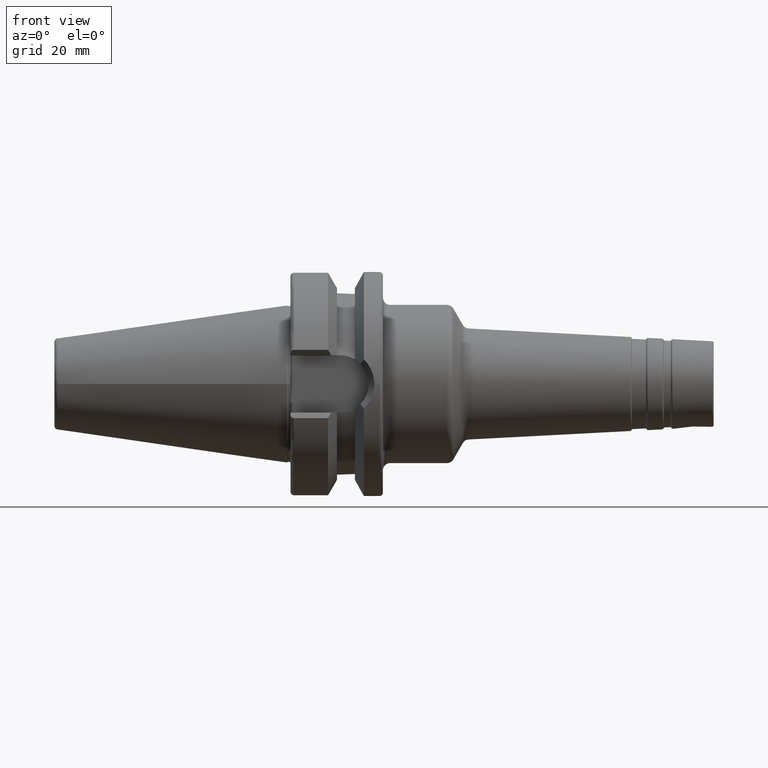
[diagram: clean part render]
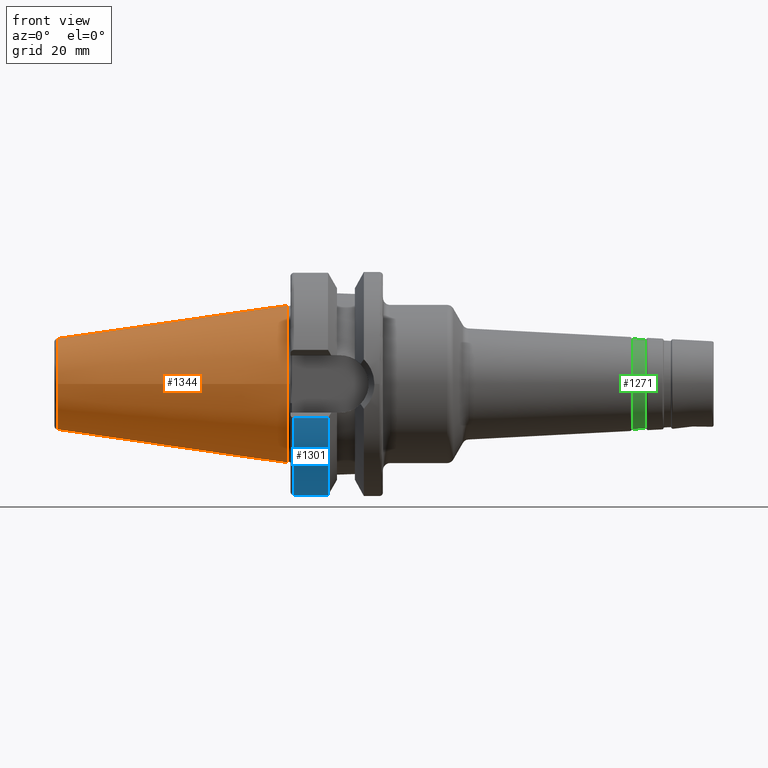
[diagram: same view with three faces highlighted in distinct colors, each labeled with its STEP entity id]
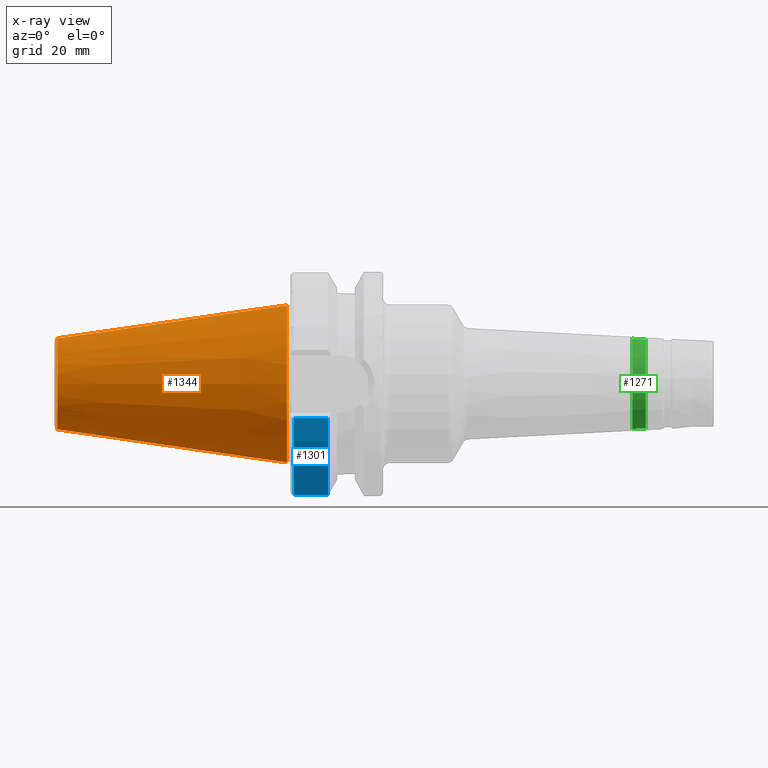
[diagram: x-ray of the same camera — body ghosted, the three highlighted faces saturated]
A machine part, front view with three faces highlighted in distinct colors.
The next image is the same camera in x-ray (body ghosted, the three faces saturated) — at least one of them is partly hidden behind the body in this view.
Their STEP definitions:

[orange] entity #1344 — the highlighted conical surface has half-angle 8.297 deg.
#165=LINE('',#2617,#236);
#236=VECTOR('',#1955,17.5186442890469);
#259=CONICAL_SURFACE('',#1538,17.5186442890469,0.144812498238939);
#340=FACE_OUTER_BOUND('',#429,.T.);
#429=EDGE_LOOP('',(#1226,#1227,#1228,#1229,#1230));
#520=CIRCLE('',#1535,12.8122885780937);
#521=CIRCLE('',#1536,12.8122885780937);
#523=CIRCLE('',#1539,22.225);
#644=VERTEX_POINT('',#2609);
#645=VERTEX_POINT('',#2610);
#646=VERTEX_POINT('',#2615);
#838=EDGE_CURVE('',#644,#645,#520,.T.);
#839=EDGE_CURVE('',#645,#644,#521,.T.);
#841=EDGE_CURVE('',#646,#646,#523,.T.);
#842=EDGE_CURVE('',#646,#644,#165,.T.);
#1226=ORIENTED_EDGE('',*,*,#841,.F.);
#1227=ORIENTED_EDGE('',*,*,#842,.T.);
#1228=ORIENTED_EDGE('',*,*,#838,.T.);
#1229=ORIENTED_EDGE('',*,*,#839,.T.);
#1230=ORIENTED_EDGE('',*,*,#842,.F.);
#1344=ADVANCED_FACE('',(#340),#259,.T.);
#1535=AXIS2_PLACEMENT_3D('',#2611,#1945,#1946);
#1536=AXIS2_PLACEMENT_3D('',#2612,#1947,#1948);
#1538=AXIS2_PLACEMENT_3D('',#2614,#1951,#1952);
#1539=AXIS2_PLACEMENT_3D('',#2616,#1953,#1954);
#1945=DIRECTION('center_axis',(1.,0.,0.));
#1946=DIRECTION('ref_axis',(0.,0.,-1.));
#1947=DIRECTION('center_axis',(1.,0.,0.));
#1948=DIRECTION('ref_axis',(0.,0.,-1.));
#1951=DIRECTION('center_axis',(1.,0.,0.));
#1952=DIRECTION('ref_axis',(0.,1.,0.));
#1953=DIRECTION('center_axis',(1.,0.,0.));
#1954=DIRECTION('ref_axis',(0.,0.,-1.));
#1955=DIRECTION('',(-0.989532981063281,0.144306893071729,1.76724974695192E-17));
#2609=CARTESIAN_POINT('',(-64.5443068930717,-12.8122885780937,-1.56905281969147E-15));
#2610=CARTESIAN_POINT('',(-64.5443068930717,-1.56905281969147E-15,12.8122885780937));
#2611=CARTESIAN_POINT('Origin',(-64.5443068930717,0.,0.));
#2612=CARTESIAN_POINT('Origin',(-64.5443068930717,0.,0.));
#2614=CARTESIAN_POINT('Origin',(-32.2721534465359,0.,0.));
#2615=CARTESIAN_POINT('',(4.44089209850063E-15,-22.225,-2.72177751110499E-15));
#2616=CARTESIAN_POINT('Origin',(0.,0.,0.));
#2617=CARTESIAN_POINT('',(-32.2721534465359,-17.5186442890469,-2.14541516539823E-15));

[blue] entity #1301 — the highlighted cylindrical surface (partial cylindrical patch) has radius 31.5 mm, axis along (1, 0, 0).
#56=CYLINDRICAL_SURFACE('',#1458,31.5);
#114=LINE('',#2255,#185);
#117=LINE('',#2267,#188);
#185=VECTOR('',#1740,10.);
#188=VECTOR('',#1747,10.);
#297=FACE_OUTER_BOUND('',#384,.T.);
#384=EDGE_LOOP('',(#998,#999,#1000,#1001));
#485=CIRCLE('',#1459,31.5);
#486=CIRCLE('',#1460,31.5000000000001);
#576=VERTEX_POINT('',#2243);
#577=VERTEX_POINT('',#2254);
#580=VERTEX_POINT('',#2264);
#581=VERTEX_POINT('',#2266);
#729=EDGE_CURVE('',#576,#577,#114,.T.);
#733=EDGE_CURVE('',#576,#580,#485,.T.);
#734=EDGE_CURVE('',#581,#580,#117,.T.);
#735=EDGE_CURVE('',#577,#581,#486,.T.);
#998=ORIENTED_EDGE('',*,*,#729,.F.);
#999=ORIENTED_EDGE('',*,*,#733,.T.);
#1000=ORIENTED_EDGE('',*,*,#734,.F.);
#1001=ORIENTED_EDGE('',*,*,#735,.F.);
#1301=ADVANCED_FACE('',(#297),#56,.T.);
#1458=AXIS2_PLACEMENT_3D('',#2263,#1743,#1744);
#1459=AXIS2_PLACEMENT_3D('',#2265,#1745,#1746);
#1460=AXIS2_PLACEMENT_3D('',#2268,#1748,#1749);
#1740=DIRECTION('',(1.,0.,0.));
#1743=DIRECTION('center_axis',(1.,0.,0.));
#1744=DIRECTION('ref_axis',(0.,1.,0.));
#1745=DIRECTION('center_axis',(1.,0.,0.));
#1746=DIRECTION('ref_axis',(0.,0.,-1.));
#1747=DIRECTION('',(-1.,0.,0.));
#1748=DIRECTION('center_axis',(1.,0.,0.));
#1749=DIRECTION('ref_axis',(0.,0.,-1.));
#2243=CARTESIAN_POINT('',(1.99999999999999,-30.0059801089944,-9.58598757033586));
#2254=CARTESIAN_POINT('',(11.5690363073381,-30.0059801089944,-9.58598757033588));
#2255=CARTESIAN_POINT('',(6.78451815366905,-30.0059801089944,-9.58598757033587));
#2263=CARTESIAN_POINT('Origin',(6.78451815366905,0.,0.));
#2264=CARTESIAN_POINT('',(1.99999999999999,30.0059801089944,-9.58598757033586));
#2265=CARTESIAN_POINT('Origin',(1.99999999999999,0.,0.));
#2266=CARTESIAN_POINT('',(11.5690363073381,30.0059801089944,-9.58598757033588));
#2267=CARTESIAN_POINT('',(6.78451815366905,30.0059801089944,-9.58598757033587));
#2268=CARTESIAN_POINT('Origin',(11.5690363073381,0.,0.));

[green] entity #1271 — the highlighted conical surface has half-angle 3 deg.
#100=LINE('',#2003,#171);
#171=VECTOR('',#1588,12.599230784584);
#242=CONICAL_SURFACE('',#1388,12.599230784584,0.0523598775598291);
#267=FACE_OUTER_BOUND('',#350,.T.);
#350=EDGE_LOOP('',(#873,#874,#875,#876));
#441=CIRCLE('',#1385,12.5006021077832);
#444=CIRCLE('',#1389,12.6978594613849);
#534=VERTEX_POINT('',#1996);
#536=VERTEX_POINT('',#2002);
#661=EDGE_CURVE('',#534,#534,#441,.T.);
#664=EDGE_CURVE('',#534,#536,#100,.T.);
#665=EDGE_CURVE('',#536,#536,#444,.T.);
#873=ORIENTED_EDGE('',*,*,#661,.F.);
#874=ORIENTED_EDGE('',*,*,#664,.T.);
#875=ORIENTED_EDGE('',*,*,#665,.F.);
#876=ORIENTED_EDGE('',*,*,#664,.F.);
#1271=ADVANCED_FACE('',(#267),#242,.T.);
#1385=AXIS2_PLACEMENT_3D('',#1997,#1580,#1581);
#1388=AXIS2_PLACEMENT_3D('',#2001,#1586,#1587);
#1389=AXIS2_PLACEMENT_3D('',#2004,#1589,#1590);
#1580=DIRECTION('center_axis',(1.,0.,0.));
#1581=DIRECTION('ref_axis',(0.,0.,1.));
#1586=DIRECTION('center_axis',(-1.,0.,0.));
#1587=DIRECTION('ref_axis',(0.,0.,-1.));
#1588=DIRECTION('',(-0.998629534754574,-6.40930612932362E-18,0.0523359562429431));
#1589=DIRECTION('center_axis',(-1.,0.,0.));
#1590=DIRECTION('ref_axis',(0.,0.,1.));
#1996=CARTESIAN_POINT('',(100.894281450576,-1.53088223587113E-15,12.5006021077832));
#1997=CARTESIAN_POINT('Origin',(100.894281450576,-1.53088223587113E-15,
0.));
#2001=CARTESIAN_POINT('Origin',(99.0123341872088,0.,0.));
#2002=CARTESIAN_POINT('',(97.1303869238419,-1.55503929454079E-15,12.6978594613849));
#2003=CARTESIAN_POINT('',(99.0123341872088,-1.54296076520596E-15,12.599230784584));
#2004=CARTESIAN_POINT('Origin',(97.1303869238419,-1.55503929454079E-15,
0.));